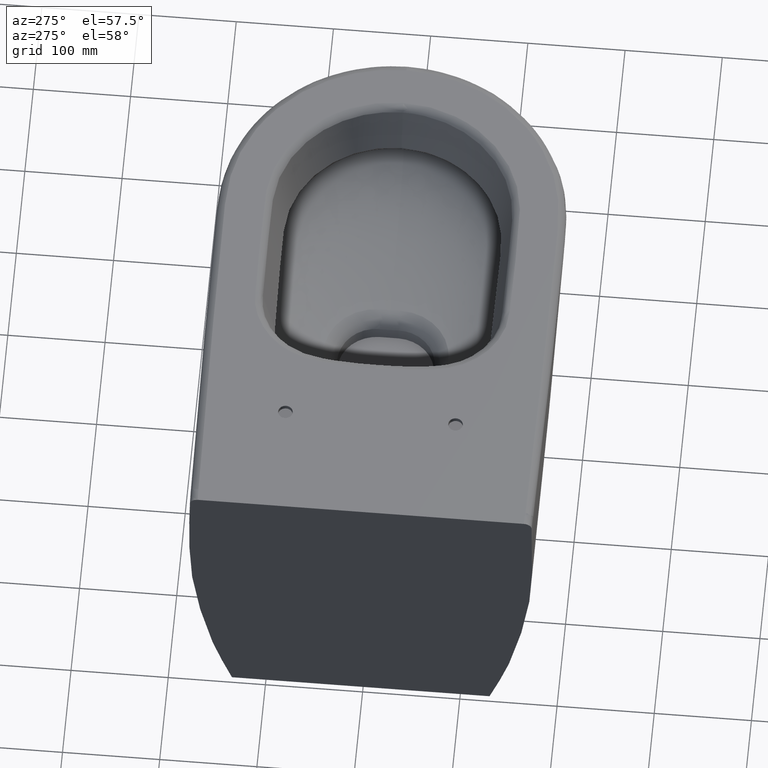
[diagram: clean part render]
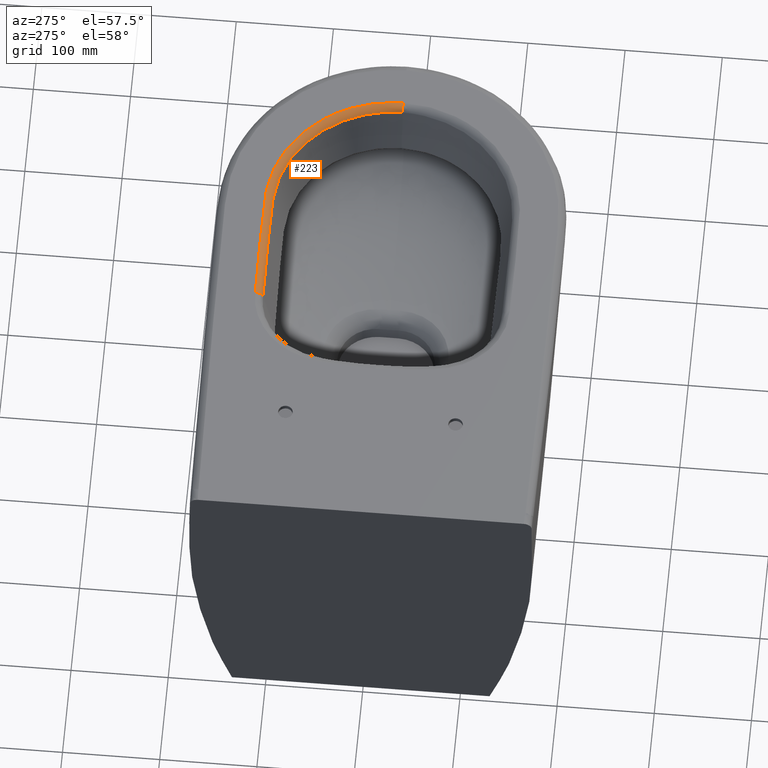
[diagram: same view with one face highlighted and labeled with its STEP entity id]
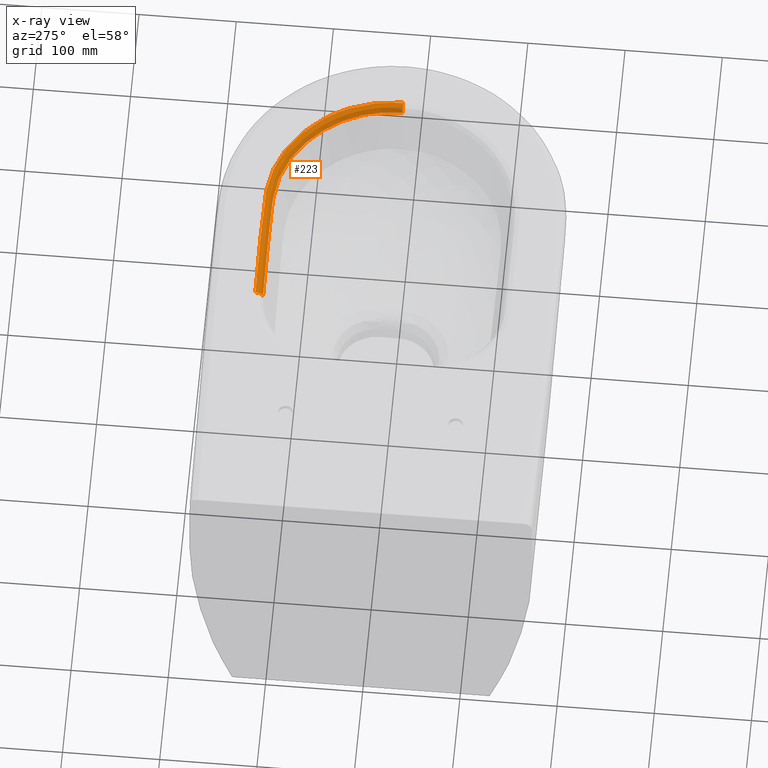
[diagram: x-ray of the same camera — body ghosted, the highlighted face saturated]
A machine part, auxiliary view. The second image highlights one B-rep face of the part: STEP entity #223.
The next image is the same camera in x-ray: the body ghosted, the highlighted face saturated — about 0% of this face is hidden behind the body in this view.
In plain terms, the highlighted face is a freeform B-spline surface patch.
Its self-contained STEP definition (entity closure, byte-faithful):
#93=CIRCLE('',#1293,8.00000000000058);
#152=(
BOUNDED_SURFACE()
B_SPLINE_SURFACE(3,2,((#17914,#17915,#17916),(#17917,#17918,#17919),(#17920,
#17921,#17922),(#17923,#17924,#17925),(#17926,#17927,#17928),(#17929,#17930,
#17931),(#17932,#17933,#17934),(#17935,#17936,#17937),(#17938,#17939,#17940),
(#17941,#17942,#17943),(#17944,#17945,#17946),(#17947,#17948,#17949),(#17950,
#17951,#17952),(#17953,#17954,#17955),(#17956,#17957,#17958),(#17959,#17960,
#17961),(#17962,#17963,#17964),(#17965,#17966,#17967),(#17968,#17969,#17970),
(#17971,#17972,#17973),(#17974,#17975,#17976),(#17977,#17978,#17979),(#17980,
#17981,#17982),(#17983,#17984,#17985),(#17986,#17987,#17988),(#17989,#17990,
#17991),(#17992,#17993,#17994),(#17995,#17996,#17997),(#17998,#17999,#18000),
(#18001,#18002,#18003),(#18004,#18005,#18006),(#18007,#18008,#18009),(#18010,
#18011,#18012),(#18013,#18014,#18015),(#18016,#18017,#18018),(#18019,#18020,
#18021),(#18022,#18023,#18024),(#18025,#18026,#18027)),.UNSPECIFIED.,.F.,
 .F.,.F.)
B_SPLINE_SURFACE_WITH_KNOTS((4,2,2,2,2,2,2,2,2,2,2,2,2,2,2,2,2,2,4),(3,
3),(0.,0.125,0.15625,0.1875,0.25,0.3125,0.375,0.4375,0.5,0.53125,0.5625,
0.625,0.6875,0.75,0.78125,0.8125,0.875,0.9375,1.),(0.,1.),.UNSPECIFIED.)
GEOMETRIC_REPRESENTATION_ITEM()
RATIONAL_B_SPLINE_SURFACE(((1.,0.776505369101233,1.),(1.,0.776505369101233,
1.),(1.,0.776505364334702,1.),(1.,0.776505364334702,1.),(1.,0.776505383314137,
1.),(1.,0.776505293262249,1.),(1.,0.776505365329035,1.),(1.,0.776505365329035,
1.),(1.,0.776505857948041,1.),(1.,0.776505915331767,1.),(1.,0.7765050491081,
1.),(1.,0.776506140696493,1.),(1.,0.776504005137603,1.),(1.,0.7765115135179,
1.),(1.,0.776505714872089,1.),(1.,0.776505155761243,1.),(1.,0.776507093429483,
1.),(1.,0.776507988404436,1.),(1.,0.776505433531642,1.),(1.,0.77650529732522,
1.),(1.,0.77650468174619,1.),(1.,0.776504869486992,1.),(1.,0.776506885192006,
1.),(1.,0.77650565176307,1.),(1.,0.77650383465749,1.),(1.,0.776505596241662,
1.),(1.,0.776506287336795,1.),(1.,0.776505325883067,1.),(1.,0.776505225414927,
1.),(1.,0.776501584912558,1.),(1.,0.776499405454311,1.),(1.,0.776497344996851,
1.),(1.,0.776504158979507,1.),(1.,0.776506374673629,1.),(1.,0.776505585289947,
1.),(1.,0.776505129146971,1.),(1.,0.776503854673863,1.),(1.,0.776505477403874,
1.)))
REPRESENTATION_ITEM('')
SURFACE()
);
#223=ADVANCED_FACE('',(#301),#152,.F.);
#301=FACE_OUTER_BOUND('',#380,.T.);
#380=EDGE_LOOP('',(#762,#763,#764,#765));
#762=ORIENTED_EDGE('',*,*,#1116,.F.);
#763=ORIENTED_EDGE('',*,*,#1114,.T.);
#764=ORIENTED_EDGE('',*,*,#1037,.F.);
#765=ORIENTED_EDGE('',*,*,#989,.T.);
#849=VERTEX_POINT('',#5336);
#850=VERTEX_POINT('',#5337);
#878=VERTEX_POINT('',#8629);
#922=VERTEX_POINT('',#17095);
#989=EDGE_CURVE('',#849,#850,#1176,.T.);
#1037=EDGE_CURVE('',#849,#878,#1215,.T.);
#1114=EDGE_CURVE('',#922,#878,#1265,.T.);
#1116=EDGE_CURVE('',#922,#850,#93,.T.);
#1176=B_SPLINE_CURVE_WITH_KNOTS('',3,(#5310,#5311,#5312,#5313,#5314,#5315,
#5316,#5317,#5318,#5319,#5320,#5321,#5322,#5323,#5324,#5325,#5326,#5327,
#5328,#5329,#5330,#5331,#5332,#5333,#5334,#5335),.UNSPECIFIED.,.F.,.F.,
(4,2,2,2,2,2,2,2,2,2,2,2,4),(0.,0.125,0.1875,0.25,0.3125,0.375,0.4375,0.5,
0.5625,0.625,0.6875,0.75,1.),.UNSPECIFIED.);
#1215=B_SPLINE_CURVE_WITH_KNOTS('',3,(#9137,#9138,#9139,#9140,#9141,#9142),
 .UNSPECIFIED.,.F.,.F.,(4,2,4),(0.,0.5,1.),.UNSPECIFIED.);
#1265=B_SPLINE_CURVE_WITH_KNOTS('',3,(#17464,#17465,#17466,#17467,#17468,
#17469,#17470,#17471,#17472,#17473,#17474,#17475,#17476,#17477,#17478,#17479,
#17480,#17481,#17482,#17483,#17484,#17485,#17486,#17487,#17488,#17489,#17490,
#17491,#17492,#17493),.UNSPECIFIED.,.F.,.F.,(4,2,2,2,2,2,2,2,2,2,2,2,2,
2,4),(0.,0.125,0.25,0.3125,0.375,0.4375,0.5,0.5625,0.625,0.6875,0.75,0.8125,
0.875,0.9375,1.),.UNSPECIFIED.);
#1293=AXIS2_PLACEMENT_3D('',#17811,#1358,#1359);
#1358=DIRECTION('',(-0.999965564600804,-0.00829877175222431,1.36886653021036E-13));
#1359=DIRECTION('',(1.35308431126181E-13,0.,1.));
#5310=CARTESIAN_POINT('',(476.779905203975,0.,12.6970186615802));
#5311=CARTESIAN_POINT('',(476.780052861939,13.3384115438475,12.6970186615802));
#5312=CARTESIAN_POINT('',(474.69643449526,26.6300103663976,12.6970186615802));
#5313=CARTESIAN_POINT('',(468.833319641064,45.468409076138,12.6970186615802));
#5314=CARTESIAN_POINT('',(466.409929922566,51.594662678218,12.6970186615802));
#5315=CARTESIAN_POINT('',(460.599284425468,63.532306856331,12.6970186615802));
#5316=CARTESIAN_POINT('',(457.223287531732,69.2918790747389,12.6970186615802));
#5317=CARTESIAN_POINT('',(449.728775189258,80.1195296309089,12.6970186615802));
#5318=CARTESIAN_POINT('',(445.594767299253,85.2372512865474,12.6970186615802));
#5319=CARTESIAN_POINT('',(436.545152099476,94.8742889327324,12.6970186615802));
#5320=CARTESIAN_POINT('',(431.591642220943,99.4013396913506,12.6970186615802));
#5321=CARTESIAN_POINT('',(421.204845769868,107.540578403189,12.6970186615802));
#5322=CARTESIAN_POINT('',(415.739801257522,111.194965198796,12.6970186615803));
#5323=CARTESIAN_POINT('',(404.26464681963,117.670563745651,12.6970186615803));
#5324=CARTESIAN_POINT('',(398.204082825057,120.522902947943,12.6970186615803));
#5325=CARTESIAN_POINT('',(385.819786832205,125.206738023736,12.6970186615803));
#5326=CARTESIAN_POINT('',(379.505825152742,127.035829644374,12.6970186615803));
#5327=CARTESIAN_POINT('',(366.62416183964,129.625787859525,12.6970186615803));
#5328=CARTESIAN_POINT('',(360.052258889598,130.405268986867,12.6970186615803));
#5329=CARTESIAN_POINT('',(346.795197389498,131.334875519406,12.6970186615804));
#5330=CARTESIAN_POINT('',(340.166482288868,131.460149859616,12.6970186615804));
#5331=CARTESIAN_POINT('',(326.908961430504,131.543730210876,12.6970186615804));
#5332=CARTESIAN_POINT('',(320.280170230036,131.528847161773,12.6970186615804));
#5333=CARTESIAN_POINT('',(287.136149755057,131.335689000062,12.6970186615804));
#5334=CARTESIAN_POINT('',(260.62087139787,131.067015537188,12.6970186615805));
#5335=CARTESIAN_POINT('',(234.105619440402,130.846963935676,12.6970186615805));
#5336=CARTESIAN_POINT('',(476.779495371781,-1.07811712079683E-7,12.6970186615802));
#5337=CARTESIAN_POINT('',(234.105619440402,130.846963935676,12.6970186615805));
#8629=CARTESIAN_POINT('',(468.950973640914,0.,6.34439997564999));
#9137=CARTESIAN_POINT('',(476.779085539644,4.31246758789139E-7,12.6970186615802));
#9138=CARTESIAN_POINT('',(475.098822387141,0.000155130740472975,12.69701866156));
#9139=CARTESIAN_POINT('',(473.207175809157,0.000452106110835577,12.101055117418));
#9140=CARTESIAN_POINT('',(470.269394836614,0.000642540902208922,9.71718558798112));
#9141=CARTESIAN_POINT('',(469.296628297984,0.000493440068964939,7.98881152898672));
#9142=CARTESIAN_POINT('',(468.950589729255,4.30893468745575E-7,6.34454933135013));
#17095=CARTESIAN_POINT('',(234.170585599543,123.018684851137,6.34438807149947));
#17464=CARTESIAN_POINT('',(234.170586778828,123.018684861338,6.34438807346917));
#17465=CARTESIAN_POINT('',(247.41888947287,123.128634751801,6.3443950312499));
#17466=CARTESIAN_POINT('',(260.72226050485,123.242365157383,6.34440278806832));
#17467=CARTESIAN_POINT('',(287.206185557454,123.47458924437,6.34441522332717));
#17468=CARTESIAN_POINT('',(300.504026449393,123.585074208348,6.34443609131527));
#17469=CARTESIAN_POINT('',(320.343337833586,123.700470137173,6.34444650280369));
#17470=CARTESIAN_POINT('',(326.958611419069,123.716015757458,6.34443011358304));
#17471=CARTESIAN_POINT('',(340.101146250898,123.630669750067,6.34446018097386));
#17472=CARTESIAN_POINT('',(346.546938584797,123.504978051649,6.34441502234763));
#17473=CARTESIAN_POINT('',(359.30166500415,122.609585845681,6.34458716028399));
#17474=CARTESIAN_POINT('',(365.549202554873,121.859900075799,6.34447906669493));
#17475=CARTESIAN_POINT('',(377.600477526053,119.430534980736,6.34445075434676));
#17476=CARTESIAN_POINT('',(383.494560924017,117.720392270996,6.34450633348748));
#17477=CARTESIAN_POINT('',(395.107241656979,113.320512454693,6.34454875389904));
#17478=CARTESIAN_POINT('',(400.820869434257,110.629073913497,6.34446716866409));
#17479=CARTESIAN_POINT('',(411.610968368143,104.531727780764,6.3444673460767));
#17480=CARTESIAN_POINT('',(416.747562950084,101.09298385936,6.34452202479508));
#17481=CARTESIAN_POINT('',(426.514579523472,93.4286586380275,6.34451332129754));
#17482=CARTESIAN_POINT('',(431.162884755001,89.1735248609068,6.34446714173025));
#17483=CARTESIAN_POINT('',(439.680282579215,80.0951410368611,6.34450096847333));
#17484=CARTESIAN_POINT('',(443.569534335472,75.2719579161171,6.3445318572003));
#17485=CARTESIAN_POINT('',(450.614931769344,65.0749739190675,6.34451635717793));
#17486=CARTESIAN_POINT('',(453.779815196255,59.6655777623872,6.34442116581185));
#17487=CARTESIAN_POINT('',(459.239901072332,48.4267066751251,6.34431890027475));
#17488=CARTESIAN_POINT('',(461.512896707296,42.6657142797499,6.34447104007549));
#17489=CARTESIAN_POINT('',(465.177466891462,30.8515408230632,6.344575153106));
#17490=CARTESIAN_POINT('',(466.585577326031,24.7642641060141,6.34455149195024));
#17491=CARTESIAN_POINT('',(468.482043861137,12.3944074393171,6.34454324132784));
#17492=CARTESIAN_POINT('',(468.94710371355,6.19198108686606,6.3445184271447));
#17493=CARTESIAN_POINT('',(468.950589729365,-6.35504843274159E-7,6.344549331327));
#17811=CARTESIAN_POINT('',(234.105619440401,130.846963935676,4.69701866157986));
#17914=CARTESIAN_POINT('',(234.105619440402,130.846963935676,12.6970186615805));
#17915=CARTESIAN_POINT('',(234.159493059751,124.355429308887,12.6970186615805));
#17916=CARTESIAN_POINT('',(234.170586778828,123.018684861338,6.34438807346917));
#17917=CARTESIAN_POINT('',(247.448586318911,130.957697985287,12.6970186615805));
#17918=CARTESIAN_POINT('',(247.490032750672,124.466060177991,12.6970186615227));
#17919=CARTESIAN_POINT('',(247.498567448114,123.129294528229,6.34438801886922));
#17920=CARTESIAN_POINT('',(260.791520783251,131.071783890678,12.6970186615805));
#17921=CARTESIAN_POINT('',(260.866782797623,124.580436732171,12.6970186616152));
#17922=CARTESIAN_POINT('',(260.882280845068,123.24373032065,6.34438877294815));
#17923=CARTESIAN_POINT('',(277.470212259241,131.218073446644,12.6970186615804));
#17924=CARTESIAN_POINT('',(277.522568399262,124.726524513319,12.6970186615718));
#17925=CARTESIAN_POINT('',(277.533349634933,123.3897773818,6.34438775054988));
#17926=CARTESIAN_POINT('',(280.805951900686,131.249811135599,12.6970186615804));
#17927=CARTESIAN_POINT('',(280.877564144888,124.75840133873,12.6970186615862));
#17928=CARTESIAN_POINT('',(280.892310390692,123.421682308218,6.3443884265981));
#17929=CARTESIAN_POINT('',(287.477422907706,131.298043078576,12.6970186615804));
#17930=CARTESIAN_POINT('',(287.49967399192,124.806274524915,12.6970186615746));
#17931=CARTESIAN_POINT('',(287.504255721093,123.469483434178,6.34438618904472));
#17932=CARTESIAN_POINT('',(290.813154894921,131.315682961039,12.6970186615804));
#17933=CARTESIAN_POINT('',(290.860018172416,124.824092998585,12.6970186615775));
#17934=CARTESIAN_POINT('',(290.869668313459,123.487337183932,6.34438803934551));
#17935=CARTESIAN_POINT('',(300.820364228817,131.39323354531,12.6970186615804));
#17936=CARTESIAN_POINT('',(300.877556230418,124.901723473464,12.6970186615862));
#17937=CARTESIAN_POINT('',(300.889333273292,123.564984255113,6.34438786051962));
#17938=CARTESIAN_POINT('',(307.491842860096,131.455507288597,12.6970186615804));
#17939=CARTESIAN_POINT('',(307.544430942638,124.96395400693,12.697018661563));
#17940=CARTESIAN_POINT('',(307.555260326781,123.627194706005,6.34440164628006));
#17941=CARTESIAN_POINT('',(320.834773376773,131.530796576362,12.6970186615804));
#17942=CARTESIAN_POINT('',(320.855444757891,125.039061992065,12.6970186615978));
#17943=CARTESIAN_POINT('',(320.85970175958,123.702266513856,6.34440022044628));
#17944=CARTESIAN_POINT('',(327.506225696704,131.544612456139,12.6970186615804));
#17945=CARTESIAN_POINT('',(327.513111564636,125.052638444173,12.6970186615688));
#17946=CARTESIAN_POINT('',(327.514535203128,123.715809930026,6.3443801222618));
#17947=CARTESIAN_POINT('',(340.849064365658,131.450740973449,12.6970186615804));
#17948=CARTESIAN_POINT('',(340.750827995028,124.959529518306,12.6970186615919));
#17949=CARTESIAN_POINT('',(340.730604510093,123.62283602194,6.34440724616517));
#17950=CARTESIAN_POINT('',(347.520431656474,131.307953324368,12.6970186615804));
#17951=CARTESIAN_POINT('',(347.257356652219,124.817899456784,12.6970186615571));
#17952=CARTESIAN_POINT('',(347.203225204271,123.481484455212,6.34435418128959));
#17953=CARTESIAN_POINT('',(360.862785738433,130.321591247007,12.6970186615803));
#17954=CARTESIAN_POINT('',(360.168583663746,123.863567901318,12.6970186616035));
#17955=CARTESIAN_POINT('',(360.025659658975,122.533597917944,6.34454075134967));
#17956=CARTESIAN_POINT('',(367.463787439376,129.503660767233,12.6970186615803));
#17957=CARTESIAN_POINT('',(366.491513072962,123.074922088736,12.6970186615688));
#17958=CARTESIAN_POINT('',(366.291297183983,121.75110237105,6.34439666525917));
#17959=CARTESIAN_POINT('',(380.405668228322,126.80152492865,12.6970186615803));
#17960=CARTESIAN_POINT('',(378.72434136301,120.520817324786,12.6970186615918));
#17961=CARTESIAN_POINT('',(378.378118707756,119.227491406484,6.34438277234387));
#17962=CARTESIAN_POINT('',(386.748093018775,124.909416532694,12.6970186615803));
#17963=CARTESIAN_POINT('',(384.723265173978,118.731944994982,12.6970186615282));
#17964=CARTESIAN_POINT('',(384.306305457833,117.459837354134,6.34443091984504));
#17965=CARTESIAN_POINT('',(396.077050895589,121.29376874893,12.6970186615803));
#17966=CARTESIAN_POINT('',(393.570501878985,115.303019314177,12.6970186616063));
#17967=CARTESIAN_POINT('',(393.05433147933,114.069347816772,6.34445315850853));
#17968=CARTESIAN_POINT('',(399.165863536635,119.95275269788,12.6970186615803));
#17969=CARTESIAN_POINT('',(396.505474282377,114.028968868128,12.6970186615716));
#17970=CARTESIAN_POINT('',(395.957642931175,112.809135307171,6.34438967442105));
#17971=CARTESIAN_POINT('',(405.184935226295,117.067957433561,12.6970186615803));
#17972=CARTESIAN_POINT('',(402.23384655891,111.283495610699,12.697018661589));
#17973=CARTESIAN_POINT('',(401.626155232814,110.092353876223,6.34438628999204));
#17974=CARTESIAN_POINT('',(408.125092504429,115.519509245558,12.6970186615803));
#17975=CARTESIAN_POINT('',(405.027610625751,109.812002886158,12.6970186615745));
#17976=CARTESIAN_POINT('',(404.389780419004,108.636718478378,6.34437099394445));
#17977=CARTESIAN_POINT('',(416.739285504251,110.558851372402,12.6970186615803));
#17978=CARTESIAN_POINT('',(413.215329998051,105.096943068915,12.6970186615918));
#17979=CARTESIAN_POINT('',(412.48967957429,103.97222828634,6.34437565900377));
#17980=CARTESIAN_POINT('',(422.206136742849,106.829944030993,12.6970186615802));
#17981=CARTESIAN_POINT('',(418.409007305434,101.554341662465,12.697018661684));
#17982=CARTESIAN_POINT('',(417.627074845893,100.467962744196,6.34442574564885));
#17983=CARTESIAN_POINT('',(432.588992778337,98.5301175475671,12.6970186615802));
#17984=CARTESIAN_POINT('',(428.279262399599,93.6642438338879,12.6970186614765));
#17985=CARTESIAN_POINT('',(427.391788648422,92.6622572928169,6.34439509702882));
#17986=CARTESIAN_POINT('',(437.52738996103,93.9204960273127,12.6970186615802));
#17987=CARTESIAN_POINT('',(432.968773478509,89.287066660678,12.697018661488));
#17988=CARTESIAN_POINT('',(432.030085989893,88.332960496509,6.34434994526562));
#17989=CARTESIAN_POINT('',(446.522611360052,84.1352004032292,12.6970186615802));
#17990=CARTESIAN_POINT('',(441.522697334184,79.9818837265103,12.6970186616724));
#17991=CARTESIAN_POINT('',(440.493112082018,79.1266179189257,6.34439371758847));
#17992=CARTESIAN_POINT('',(450.626809518858,78.9413493297096,12.6970186615802));
#17993=CARTESIAN_POINT('',(445.429405854424,75.0379703810684,12.6970186614134));
#17994=CARTESIAN_POINT('',(444.359131678643,74.2341766026209,6.3444108898183));
#17995=CARTESIAN_POINT('',(456.1924254042,70.6983371387489,12.6970186615802));
#17996=CARTESIAN_POINT('',(450.72082754767,67.2010201181204,12.6970186616636));
#17997=CARTESIAN_POINT('',(449.594109445326,66.4808503871404,6.34438699964108));
#17998=CARTESIAN_POINT('',(457.948099507548,67.8744636538312,12.6970186615802));
#17999=CARTESIAN_POINT('',(452.3882250505,64.5190737500448,12.6970186616352));
#18000=CARTESIAN_POINT('',(451.243326739106,63.8281380284809,6.34438450318314));
#18001=CARTESIAN_POINT('',(461.25181525939,62.0677497833465,12.6970186615802));
#18002=CARTESIAN_POINT('',(455.52673531972,59.0025751760271,12.6970186615251));
#18003=CARTESIAN_POINT('',(454.347882511509,58.3714354597418,6.34429404336564));
#18004=CARTESIAN_POINT('',(462.80241647965,59.0789384105177,12.6970186615802));
#18005=CARTESIAN_POINT('',(457.000152704299,56.1624814908381,12.6970186615079));
#18006=CARTESIAN_POINT('',(455.805449606609,55.5619786505205,6.34423988821245));
#18007=CARTESIAN_POINT('',(467.066140874897,50.0281301998541,12.6970186615802));
#18008=CARTESIAN_POINT('',(461.052094624248,47.5611320921297,12.6970186617248));
#18009=CARTESIAN_POINT('',(459.813818666956,47.0531999350953,6.34418869033366));
#18010=CARTESIAN_POINT('',(469.423286593928,43.8357145135494,12.6970186615802));
#18011=CARTESIAN_POINT('',(463.292728380734,41.6751136811349,12.6970186617295));
#18012=CARTESIAN_POINT('',(462.030343061226,41.2301968714058,6.34435800428606));
#18013=CARTESIAN_POINT('',(473.185615207501,31.1399085064808,12.6970186615802));
#18014=CARTESIAN_POINT('',(466.867755699729,29.6115115347501,12.6970186614309));
#18015=CARTESIAN_POINT('',(465.566758302029,29.2967659930638,6.34441305997508));
#18016=CARTESIAN_POINT('',(474.607593487267,24.6209744243651,12.6970186615802));
#18017=CARTESIAN_POINT('',(468.224142201797,23.3937101825127,12.6970186616557));
#18018=CARTESIAN_POINT('',(466.909649772545,23.1409921299729,6.34439344539331));
#18019=CARTESIAN_POINT('',(476.457708705163,11.3470481964862,12.6970186615802));
#18020=CARTESIAN_POINT('',(469.981948797846,10.7819962819607,12.6970186615046));
#18021=CARTESIAN_POINT('',(468.648457181596,10.6656430161323,6.34438211101398));
#18022=CARTESIAN_POINT('',(476.856760184659,4.72119186962827,12.6970186615802));
#18023=CARTESIAN_POINT('',(470.361225499658,4.49034179428007,12.6970186612548));
#18024=CARTESIAN_POINT('',(469.023687893313,4.44279044624985,6.34435026129867));
#18025=CARTESIAN_POINT('',(476.766696137164,-1.89425131133944,12.6970186615802));
#18026=CARTESIAN_POINT('',(470.275541773952,-1.80587935780609,12.6970186615802));
#18027=CARTESIAN_POINT('',(468.938873447164,-1.78768167143866,6.3443907645917));